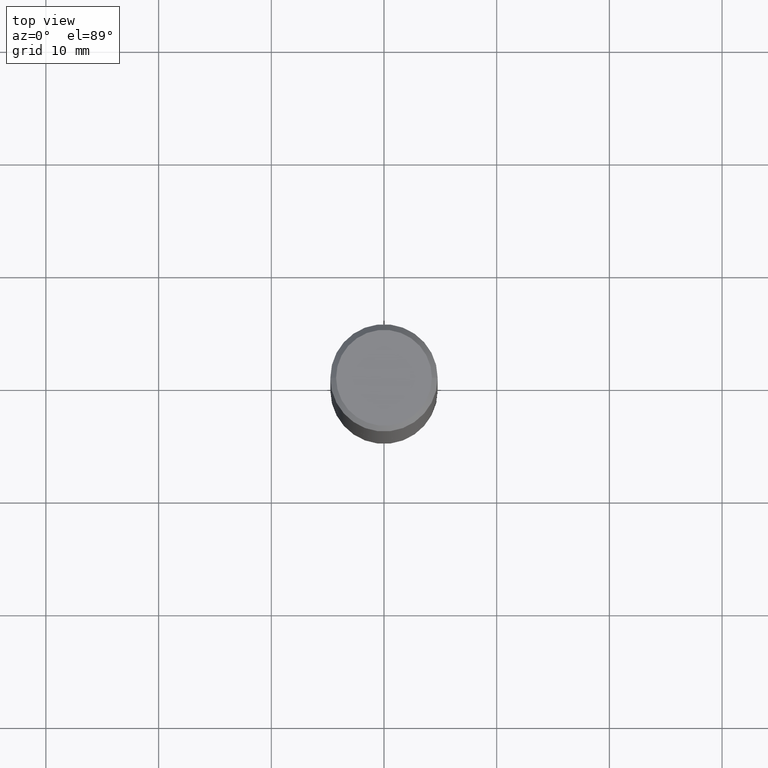
[diagram: clean part render]
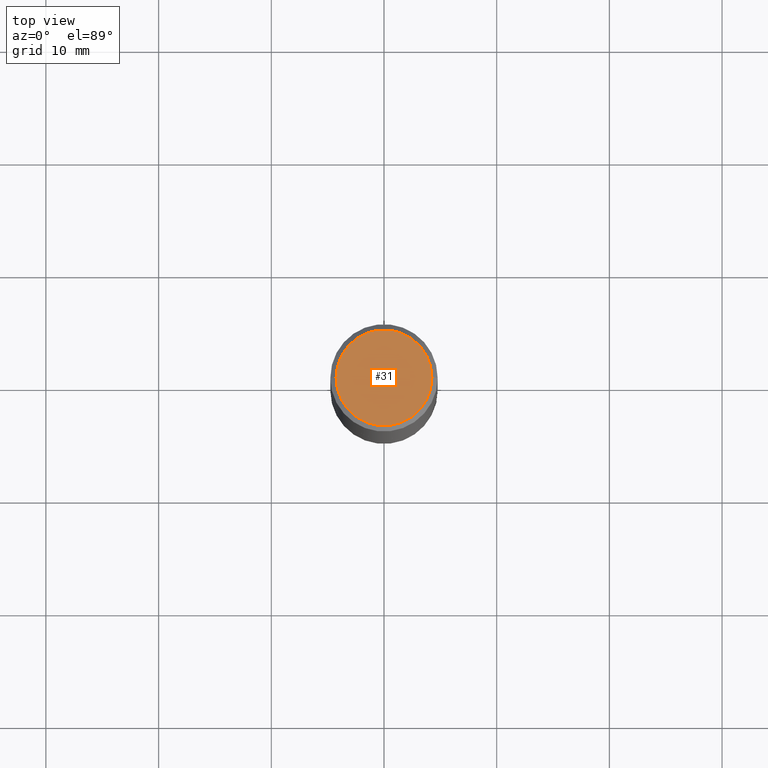
[diagram: same view with one face highlighted and labeled with its STEP entity id]
A machine part, top view. The second image highlights one B-rep face of the part: STEP entity #31.
In plain terms, the highlighted planar face has unit normal (0, -0, -1).
Its self-contained STEP definition (entity closure, byte-faithful):
#6 = CARTESIAN_POINT ( 'NONE',  ( 0.1674999999999998157, -1.252653207992877105E-15, 8.469775550109232378E-30 ) ) ;
#9 = EDGE_CURVE ( 'NONE', #275, #179, #149, .T. ) ;
#14 = DIRECTION ( 'NONE',  ( 2.438088387897960049E-29, -3.491481338843145188E-15, -1.000000000000000000 ) ) ;
#26 = CARTESIAN_POINT ( 'NONE',  ( -0.1674999999999998157, 1.204561061900879272E-15, -8.301862719484101980E-30 ) ) ;
#31 = ADVANCED_FACE ( 'NONE', ( #53 ), #156, .F. ) ;
#50 = ORIENTED_EDGE ( 'NONE', *, *, #363, .T. ) ;
#52 = DIRECTION ( 'NONE',  ( -2.445468806185136597E-29, 3.491481338843145583E-15, 1.000000000000000000 ) ) ;
#53 = FACE_OUTER_BOUND ( 'NONE', #267, .T. ) ;
#80 = DIRECTION ( 'NONE',  ( 1.000000000000000000, -6.982962677686266711E-15, 4.876176775795936914E-29 ) ) ;
#96 = CIRCLE ( 'NONE', #102, 0.1674999999999998157 ) ;
#102 = AXIS2_PLACEMENT_3D ( 'NONE', #189, #271, #80 ) ;
#114 = AXIS2_PLACEMENT_3D ( 'NONE', #299, #52, #154 ) ;
#149 = CIRCLE ( 'NONE', #114, 0.1674999999999998157 ) ;
#154 = DIRECTION ( 'NONE',  ( 1.000000000000000000, -6.982962677686266711E-15, 4.876176775795936914E-29 ) ) ;
#156 = PLANE ( 'NONE',  #263 ) ;
#168 = DIRECTION ( 'NONE',  ( -1.000000000000000000, 6.982962677686265922E-15, -4.876176775795935793E-29 ) ) ;
#179 = VERTEX_POINT ( 'NONE', #26 ) ;
#189 = CARTESIAN_POINT ( 'NONE',  ( 0.000000000000000000, 0.000000000000000000, 0.000000000000000000 ) ) ;
#263 = AXIS2_PLACEMENT_3D ( 'NONE', #269, #14, #168 ) ;
#267 = EDGE_LOOP ( 'NONE', ( #50, #356 ) ) ;
#269 = CARTESIAN_POINT ( 'NONE',  ( 1.169646248512448412E-15, 0.1674999999999998157, -5.848231242562262767E-16 ) ) ;
#271 = DIRECTION ( 'NONE',  ( -2.445468806185136597E-29, 3.491481338843145583E-15, 1.000000000000000000 ) ) ;
#275 = VERTEX_POINT ( 'NONE', #6 ) ;
#299 = CARTESIAN_POINT ( 'NONE',  ( 0.000000000000000000, 0.000000000000000000, 0.000000000000000000 ) ) ;
#356 = ORIENTED_EDGE ( 'NONE', *, *, #9, .T. ) ;
#363 = EDGE_CURVE ( 'NONE', #179, #275, #96, .T. ) ;